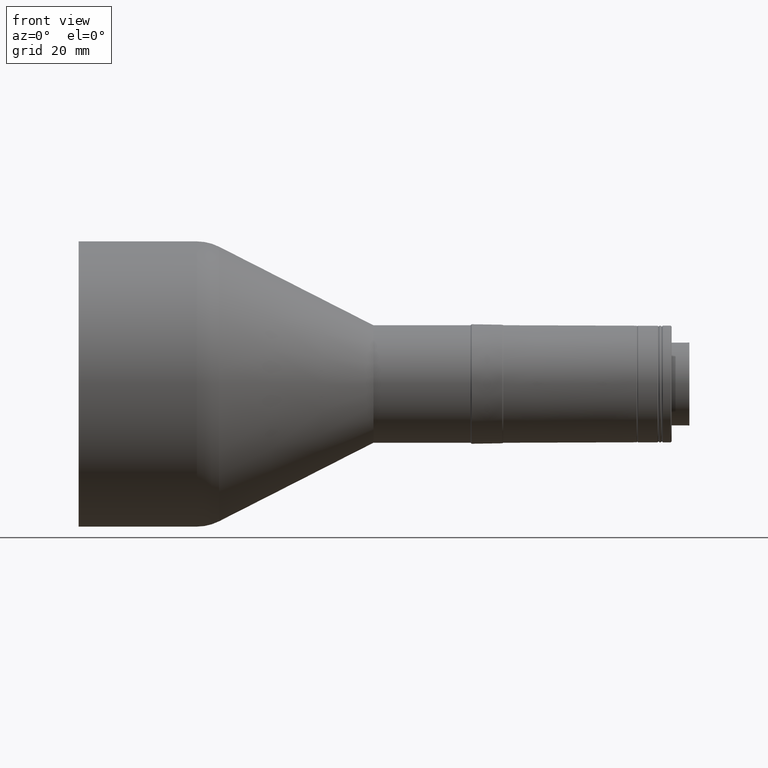
[diagram: clean part render]
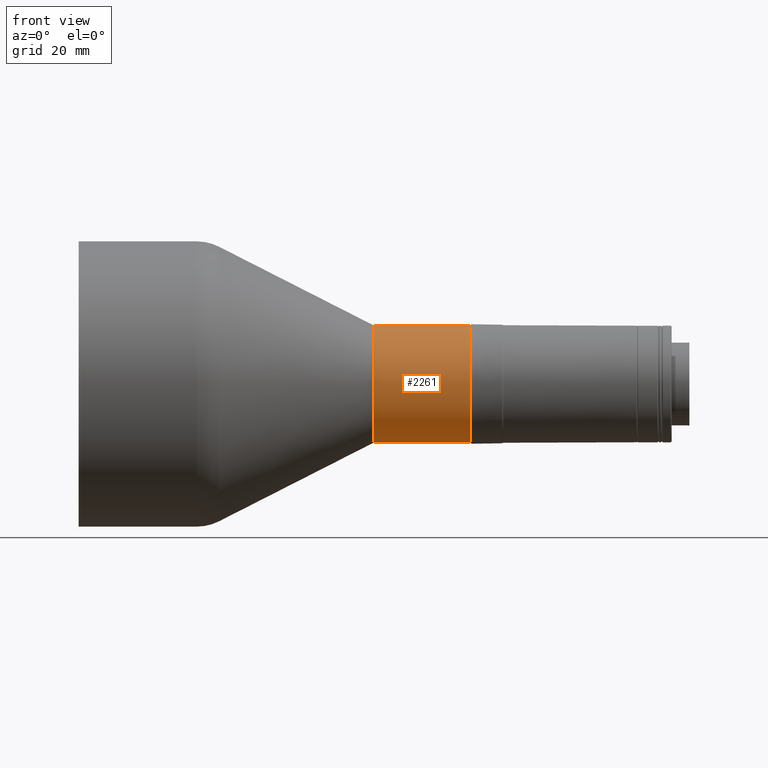
[diagram: same view with one face highlighted and labeled with its STEP entity id]
A machine part, front view. The second image highlights one B-rep face of the part: STEP entity #2261.
In plain terms, the highlighted cylindrical surface (partial cylindrical patch) has radius 18 mm, axis along (-1, -0, -0).
Its self-contained STEP definition (entity closure, byte-faithful):
#15 = CARTESIAN_POINT ( 'NONE',  ( 66.30158704577129900, 0.0000000000000000000, -164.1109999999999900 ) ) ;
#27 = AXIS2_PLACEMENT_3D ( 'NONE', #820, #291, #1575 ) ;
#146 = EDGE_CURVE ( 'NONE', #1143, #882, #1625, .T. ) ;
#160 = VECTOR ( 'NONE', #2244, 1000.000000000000000 ) ;
#283 = CARTESIAN_POINT ( 'NONE',  ( -41.80689966640019200, 2.204364238465237800E-015, -182.1109999999999900 ) ) ;
#291 = DIRECTION ( 'NONE',  ( -1.000000000000000000, -0.0000000000000000000, -0.0000000000000000000 ) ) ;
#382 = ORIENTED_EDGE ( 'NONE', *, *, #146, .F. ) ;
#409 = DIRECTION ( 'NONE',  ( 0.0000000000000000000, 0.0000000000000000000, 1.000000000000000000 ) ) ;
#477 = LINE ( 'NONE', #2059, #160 ) ;
#669 = CARTESIAN_POINT ( 'NONE',  ( 66.30158704577129900, 2.204364238465237400E-015, -182.1109999999999900 ) ) ;
#690 = FACE_OUTER_BOUND ( 'NONE', #1844, .T. ) ;
#776 = ORIENTED_EDGE ( 'NONE', *, *, #1056, .F. ) ;
#820 = CARTESIAN_POINT ( 'NONE',  ( 96.07470247992908700, 0.0000000000000000000, -164.1109999999999900 ) ) ;
#853 = AXIS2_PLACEMENT_3D ( 'NONE', #1102, #2193, #409 ) ;
#864 = VERTEX_POINT ( 'NONE', #1813 ) ;
#878 = CARTESIAN_POINT ( 'NONE',  ( 96.07470247992908700, 2.222733940456205600E-015, -146.1109999999999600 ) ) ;
#882 = VERTEX_POINT ( 'NONE', #1237 ) ;
#1056 = EDGE_CURVE ( 'NONE', #864, #1143, #1063, .T. ) ;
#1063 = LINE ( 'NONE', #283, #2138 ) ;
#1066 = CYLINDRICAL_SURFACE ( 'NONE', #853, 18.00000000000001400 ) ;
#1073 = EDGE_CURVE ( 'NONE', #864, #1809, #1820, .T. ) ;
#1102 = CARTESIAN_POINT ( 'NONE',  ( -41.80689966640019200, 0.0000000000000000000, -164.1109999999999900 ) ) ;
#1143 = VERTEX_POINT ( 'NONE', #669 ) ;
#1237 = CARTESIAN_POINT ( 'NONE',  ( 66.30158704577129900, 0.0000000000000000000, -146.1109999999999600 ) ) ;
#1477 = DIRECTION ( 'NONE',  ( 0.0000000000000000000, 0.0000000000000000000, 1.000000000000000000 ) ) ;
#1563 = AXIS2_PLACEMENT_3D ( 'NONE', #15, #1843, #1477 ) ;
#1575 = DIRECTION ( 'NONE',  ( 0.0000000000000000000, 0.0000000000000000000, 1.000000000000000000 ) ) ;
#1612 = EDGE_CURVE ( 'NONE', #1809, #882, #477, .T. ) ;
#1625 = CIRCLE ( 'NONE', #1563, 18.00000000000001400 ) ;
#1809 = VERTEX_POINT ( 'NONE', #878 ) ;
#1813 = CARTESIAN_POINT ( 'NONE',  ( 96.07470247992908700, 0.0000000000000000000, -182.1109999999999900 ) ) ;
#1820 = CIRCLE ( 'NONE', #27, 18.00000000000001400 ) ;
#1843 = DIRECTION ( 'NONE',  ( -1.000000000000000000, -0.0000000000000000000, -0.0000000000000000000 ) ) ;
#1844 = EDGE_LOOP ( 'NONE', ( #776, #2145, #2265, #382 ) ) ;
#1898 = DIRECTION ( 'NONE',  ( -1.000000000000000000, -0.0000000000000000000, -0.0000000000000000000 ) ) ;
#2059 = CARTESIAN_POINT ( 'NONE',  ( -41.80689966640019200, 0.0000000000000000000, -146.1109999999999600 ) ) ;
#2138 = VECTOR ( 'NONE', #1898, 1000.000000000000000 ) ;
#2145 = ORIENTED_EDGE ( 'NONE', *, *, #1073, .T. ) ;
#2193 = DIRECTION ( 'NONE',  ( -1.000000000000000000, -0.0000000000000000000, -0.0000000000000000000 ) ) ;
#2244 = DIRECTION ( 'NONE',  ( -1.000000000000000000, -0.0000000000000000000, -0.0000000000000000000 ) ) ;
#2261 = ADVANCED_FACE ( 'NONE', ( #690 ), #1066, .T. ) ;
#2265 = ORIENTED_EDGE ( 'NONE', *, *, #1612, .T. ) ;